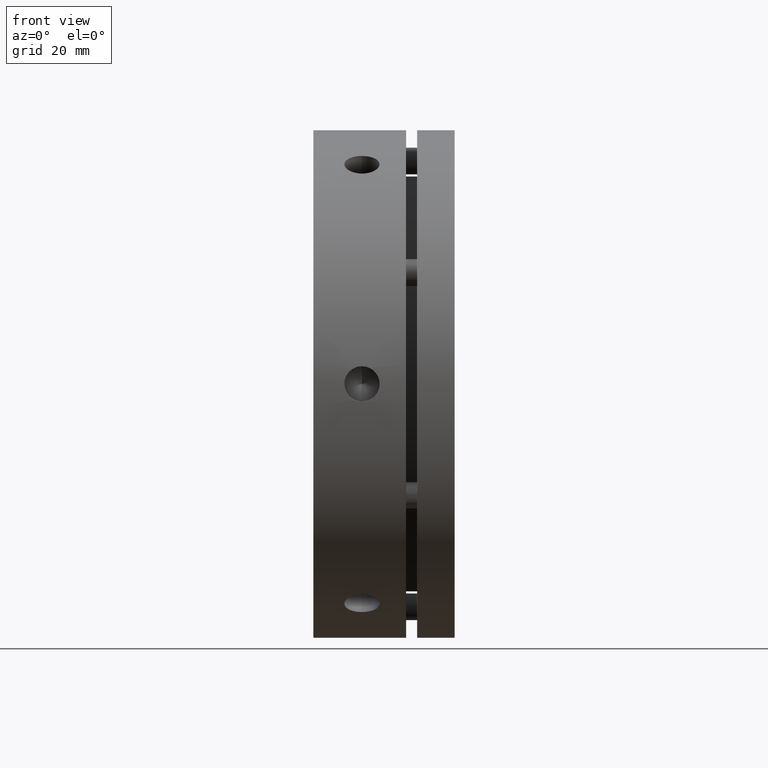
[diagram: clean part render]
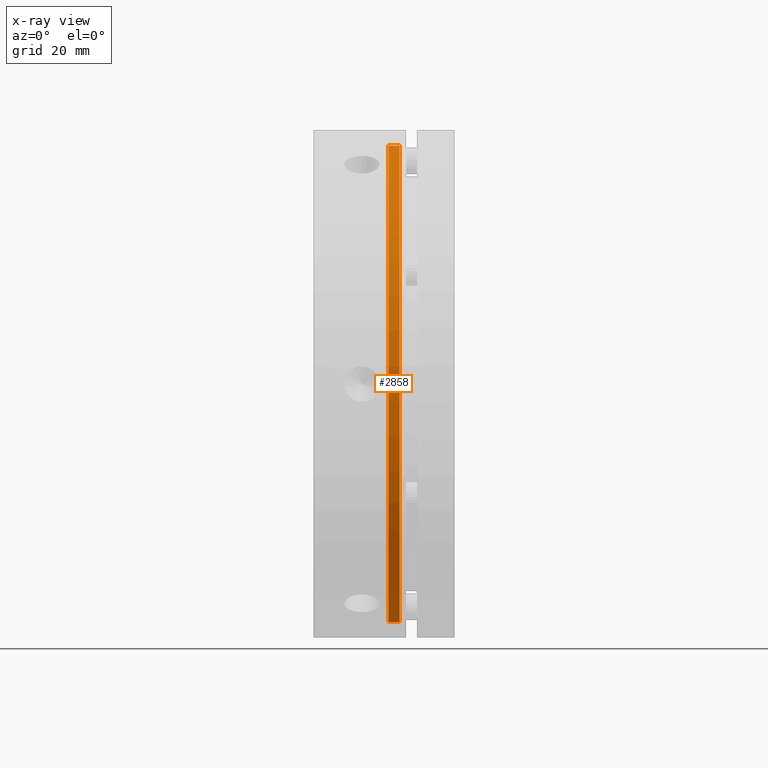
[diagram: x-ray — body ghosted, one internal face saturated and labeled with its STEP entity id]
A machine part, front view, then the same camera in x-ray: the body is ghosted and one INTERNAL B-rep face — a face not visible from any outside direction — is saturated and labeled: STEP entity #2858.
In plain terms, the highlighted cylindrical surface (partial cylindrical patch) has radius 54 mm, axis along (-1, 0, 0).
Its self-contained STEP definition (entity closure, byte-faithful):
#63 = EDGE_LOOP ( 'NONE', ( #1151, #1174, #1181, #1182 ) ) ;
#370 = VERTEX_POINT ( 'NONE', #1361 ) ;
#478 = VERTEX_POINT ( 'NONE', #1860 ) ;
#480 = VERTEX_POINT ( 'NONE', #1862 ) ;
#487 = VERTEX_POINT ( 'NONE', #1869 ) ;
#676 = EDGE_CURVE ( 'NONE', #370, #487, #4281, .T. ) ;
#677 = EDGE_CURVE ( 'NONE', #487, #480, #4284, .T. ) ;
#678 = EDGE_CURVE ( 'NONE', #480, #478, #4287, .T. ) ;
#679 = EDGE_CURVE ( 'NONE', #370, #478, #4289, .T. ) ;
#867 = AXIS2_PLACEMENT_3D ( 'NONE', #2396, #2397, #2398 ) ;
#878 = AXIS2_PLACEMENT_3D ( 'NONE', #2399, #2400, #2401 ) ;
#1151 = ORIENTED_EDGE ( 'NONE', *, *, #676, .T. ) ;
#1174 = ORIENTED_EDGE ( 'NONE', *, *, #677, .T. ) ;
#1181 = ORIENTED_EDGE ( 'NONE', *, *, #678, .T. ) ;
#1182 = ORIENTED_EDGE ( 'NONE', *, *, #679, .F. ) ;
#1361 = CARTESIAN_POINT ( 'NONE',  ( 19.49999999999999600, 0.0000000000000000000, 54.00000000000000000 ) ) ;
#1779 = AXIS2_PLACEMENT_3D ( 'NONE', #3393, #3392, #3389 ) ;
#1860 = CARTESIAN_POINT ( 'NONE',  ( 17.00000000000000000, 0.0000000000000000000, 54.00000000000000000 ) ) ;
#1862 = CARTESIAN_POINT ( 'NONE',  ( 17.00000000000000000, 6.613092715395707500E-015, -54.00000000000000000 ) ) ;
#1869 = CARTESIAN_POINT ( 'NONE',  ( 19.49999999999999600, 6.613092715395707500E-015, -54.00000000000000000 ) ) ;
#2392 = DIRECTION ( 'NONE',  ( -1.000000000000000000, 0.0000000000000000000, 0.0000000000000000000 ) ) ;
#2393 = CARTESIAN_POINT ( 'NONE',  ( 18.24999999999999600, 0.0000000000000000000, 54.00000000000000000 ) ) ;
#2394 = DIRECTION ( 'NONE',  ( -1.000000000000000000, 0.0000000000000000000, 0.0000000000000000000 ) ) ;
#2395 = CARTESIAN_POINT ( 'NONE',  ( 18.24999999999999600, 6.613092715395707500E-015, -54.00000000000000000 ) ) ;
#2396 = CARTESIAN_POINT ( 'NONE',  ( 19.49999999999999600, 0.0000000000000000000, 0.0000000000000000000 ) ) ;
#2397 = DIRECTION ( 'NONE',  ( 1.000000000000000000, -0.0000000000000000000, -0.0000000000000000000 ) ) ;
#2398 = DIRECTION ( 'NONE',  ( 0.0000000000000000000, 0.0000000000000000000, 1.000000000000000000 ) ) ;
#2399 = CARTESIAN_POINT ( 'NONE',  ( 17.00000000000000000, 0.0000000000000000000, 0.0000000000000000000 ) ) ;
#2400 = DIRECTION ( 'NONE',  ( -1.000000000000000000, 0.0000000000000000000, 0.0000000000000000000 ) ) ;
#2401 = DIRECTION ( 'NONE',  ( 0.0000000000000000000, 0.0000000000000000000, 1.000000000000000000 ) ) ;
#2858 = ADVANCED_FACE ( 'NONE', ( #4713 ), #4717, .F. ) ;
#3389 = DIRECTION ( 'NONE',  ( 0.0000000000000000000, 0.0000000000000000000, 1.000000000000000000 ) ) ;
#3392 = DIRECTION ( 'NONE',  ( -1.000000000000000000, 0.0000000000000000000, 0.0000000000000000000 ) ) ;
#3393 = CARTESIAN_POINT ( 'NONE',  ( 18.24999999999999600, 0.0000000000000000000, 0.0000000000000000000 ) ) ;
#4281 = CIRCLE ( 'NONE', #867, 54.00000000000000000 ) ;
#4284 = LINE ( 'NONE', #2395, #4288 ) ;
#4287 = CIRCLE ( 'NONE', #878, 54.00000000000000000 ) ;
#4288 = VECTOR ( 'NONE', #2392, 1000.000000000000000 ) ;
#4289 = LINE ( 'NONE', #2393, #4291 ) ;
#4291 = VECTOR ( 'NONE', #2394, 1000.000000000000000 ) ;
#4713 = FACE_OUTER_BOUND ( 'NONE', #63, .T. ) ;
#4717 = CYLINDRICAL_SURFACE ( 'NONE', #1779, 54.00000000000000000 ) ;